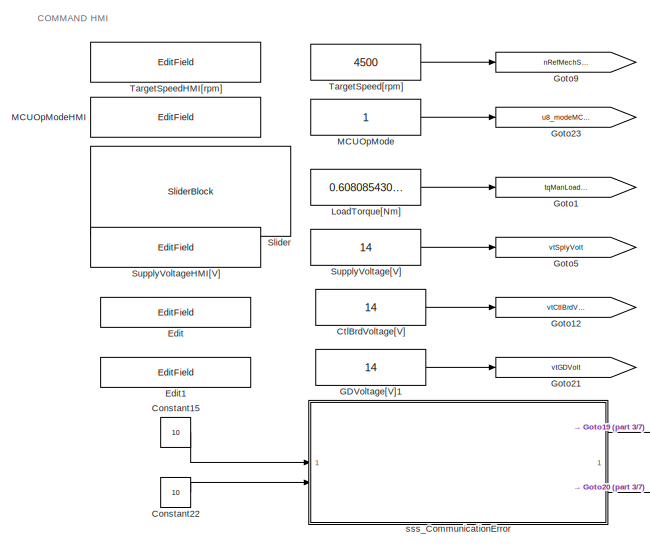
[diagram: root canvas - part 1/7, top center region]
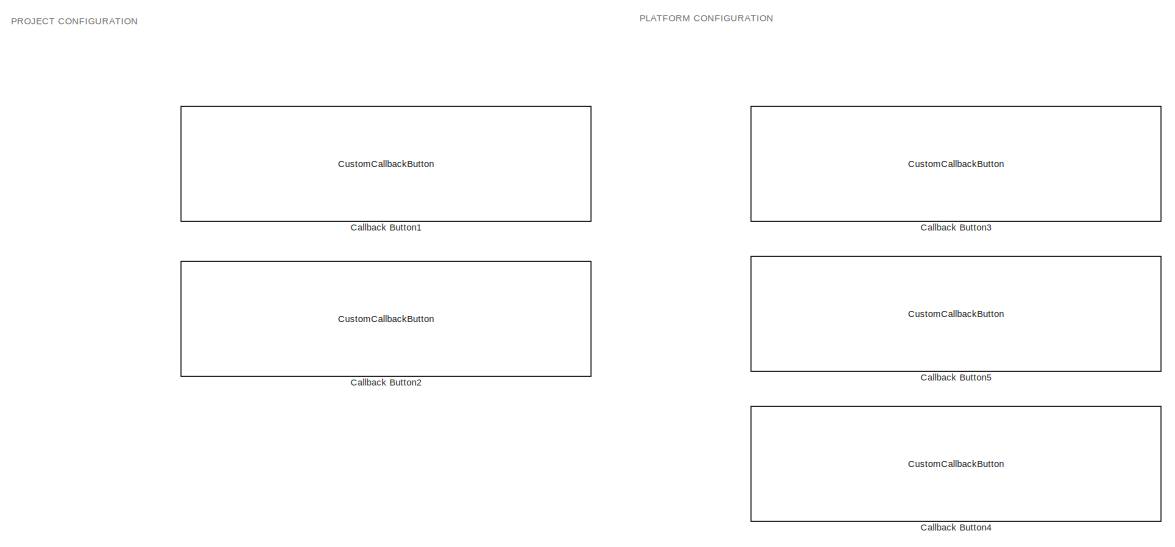
[diagram: root canvas - part 2/7, top left region]
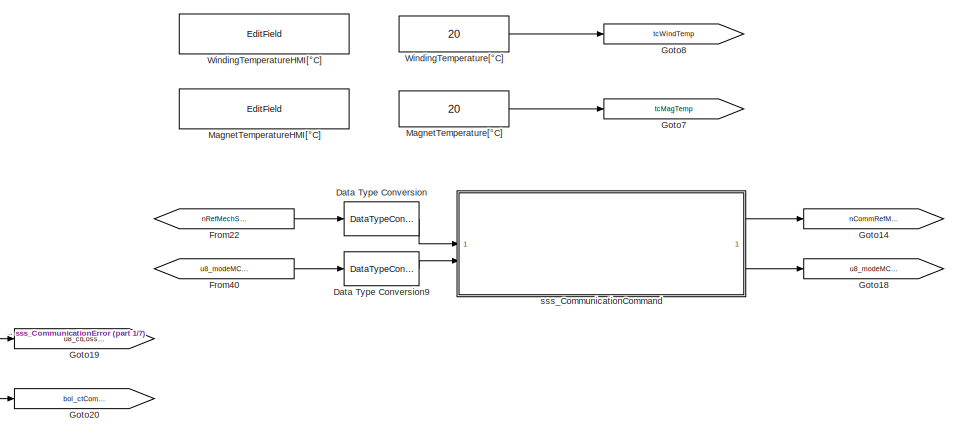
[diagram: root canvas - part 3/7, top right region]
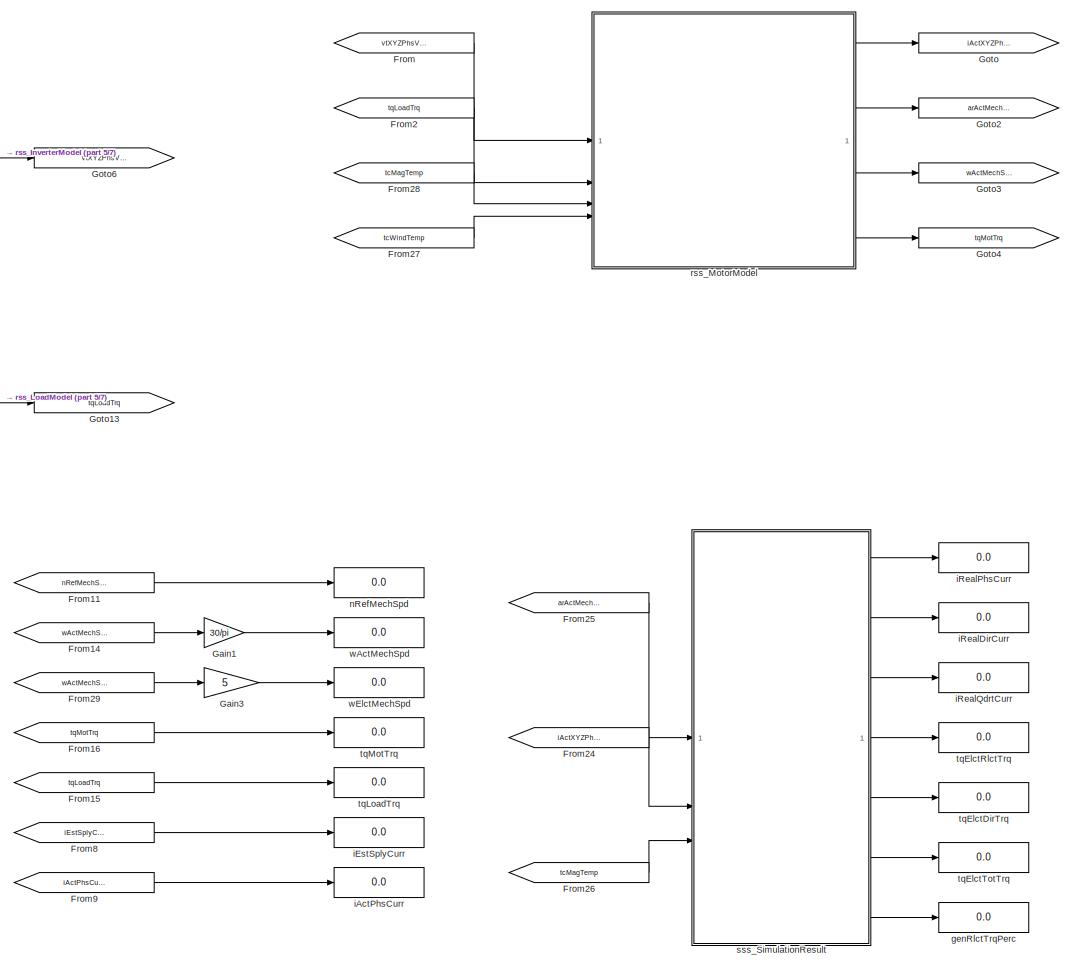
[diagram: root canvas - part 4/7, middle right region]
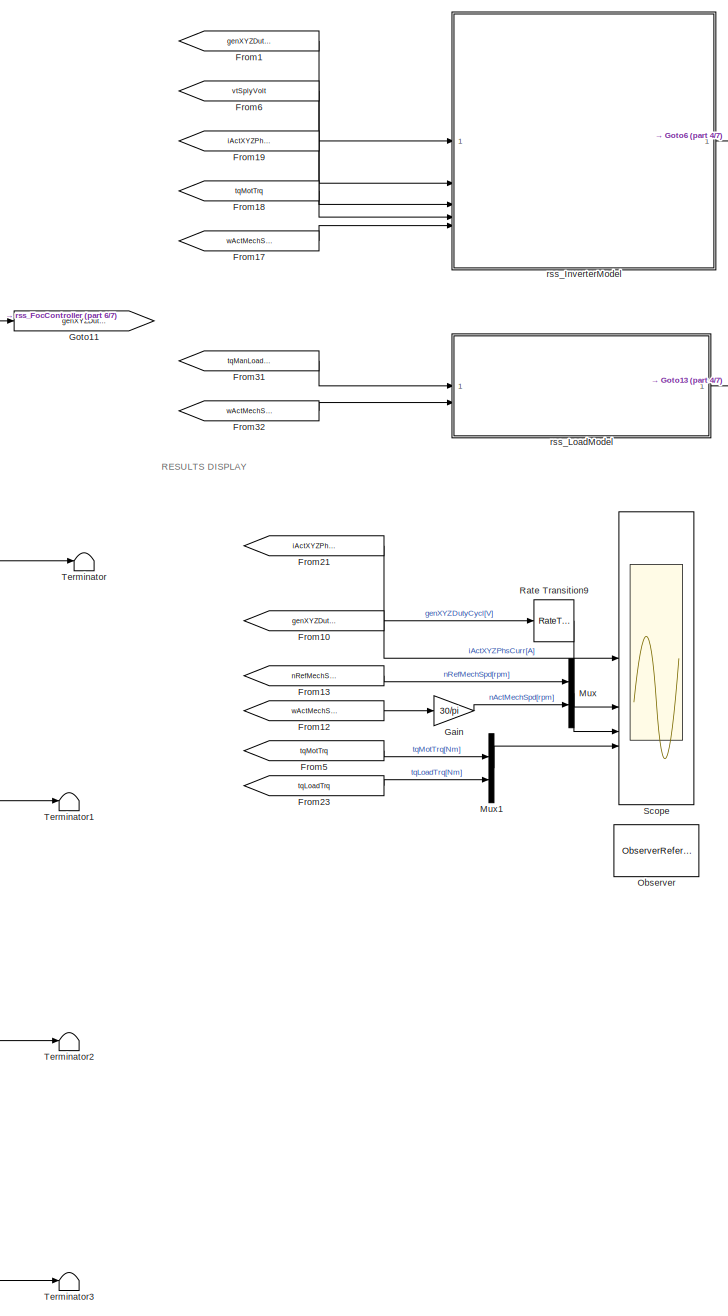
[diagram: root canvas - part 5/7, central region]
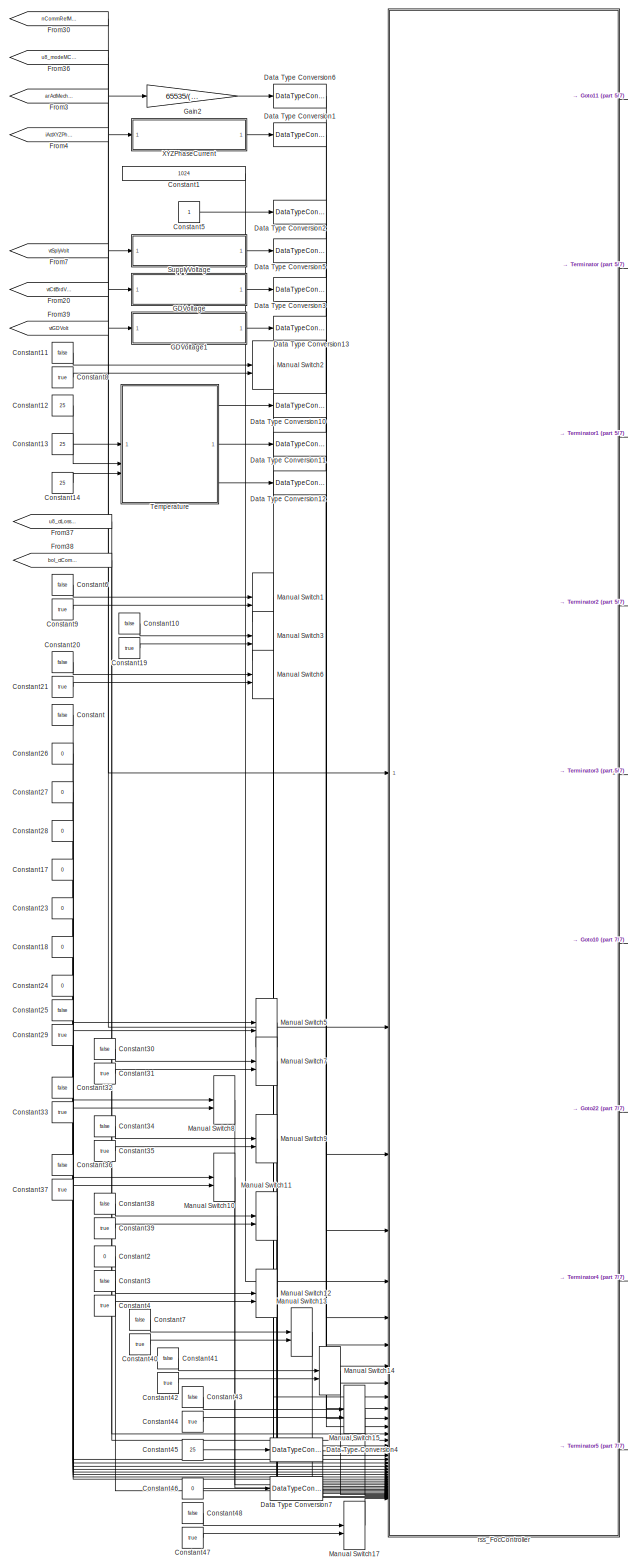
[diagram: root canvas - part 6/7, middle left region]
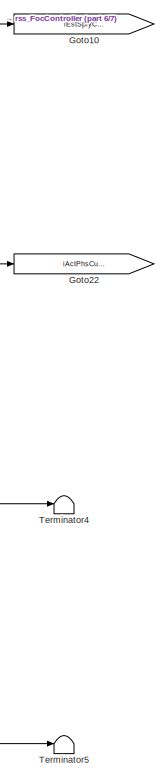
[diagram: root canvas - part 7/7, bottom center region]
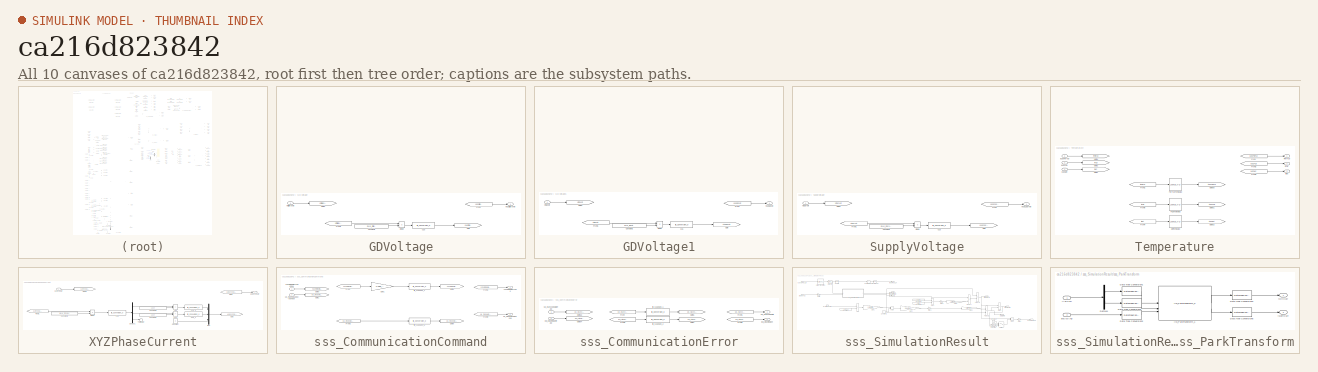
[diagram: thumbnail index - all 10 canvases of the model, root first then tree order]
MODEL slx_ca216d823842
KIND model
CONFIG AbsTol = auto
CONFIG EnableMultiTasking = off
CONFIG FixedStep = 6.25e-6
CONFIG MaxStep = auto
CONFIG MinStep = auto
CONFIG RelTol = 1e-3
CONFIG SampleTimeConstraint = Unconstrained
CONFIG SolverName = FixedStepAuto
CONFIG StartTime = 0.0
CONFIG StopTime = 10.0
BLOCK [CustomCallbackButton] Callback Button1
  Configuration = {"components":[{"name":"BackgroundImageComponent","settings":{"image":{"size":[0,0],"src":"default","srcOrientation":"horizontal"},"position":[0,0,1,1],"scaleMode":"0"}},{"name":"ButtonStateComponent","settings":{"buttonType":"momentary","clickFcn":"\nproj = simulinkproject;\nproj_dir = proj.RootFolder;\n% configure GEELY\n%%AST \nopen_system([proj_dir,'<path>']);...<+14609ch>
  CustomBackgroundColor = {"color":[0.6509803921568628,0.6509803921568628,0.6509803921568628],"show":true}
  Description = BYD 48V Project
BLOCK [CustomCallbackButton] Callback Button2
  Configuration = {"components":[{"name":"BackgroundImageComponent","settings":{"image":{"size":[0,0],"src":"default","srcOrientation":"horizontal"},"position":[0,0,1,1],"scaleMode":"0"}},{"name":"ButtonStateComponent","settings":{"buttonType":"momentary","clickFcn":"\nproj = simulinkproject;\nproj_dir = proj.RootFolder;\n% configure CRRC\n%%AST \nopen_system([proj_dir,'<path>']);\...<+14596ch>
  CustomBackgroundColor = {"color":[0.6509803921568628,0.6509803921568628,0.6509803921568628],"show":true}
  Description = BYD 48V Project
BLOCK [CustomCallbackButton] Callback Button3
  Configuration = {"components":[{"name":"BackgroundImageComponent","settings":{"image":{"size":[0,0],"src":"default","srcOrientation":"horizontal"},"position":[0,0,1,1],"scaleMode":"0"}},{"name":"ButtonStateComponent","settings":{"buttonType":"momentary","clickFcn":"\nsave_system;\n\nproj = simulinkproject;\nproj_dir = proj.RootFolder;\nconfiguration_dd = Simulink.data.dictionary.open([proj_dir,'\\data_dictionary\...<+24055ch>
BLOCK [CustomCallbackButton] Callback Button4
  Configuration = {"components":[{"name":"BackgroundImageComponent","settings":{"image":{"size":[0,0],"src":"default","srcOrientation":"horizontal"},"position":[0,0,1,1],"scaleMode":"0"}},{"name":"ButtonStateComponent","settings":{"buttonType":"momentary","clickFcn":"\nsave_system;\n\nproj = simulinkproject;\nproj_dir = proj.RootFolder;\nconfiguration_dd = Simulink.data.dictionary.open([proj_dir,'\\data_dictionary\...<+24028ch>
BLOCK [CustomCallbackButton] Callback Button5
  Configuration = {"components":[{"name":"BackgroundImageComponent","settings":{"image":{"size":[0,0],"src":"default","srcOrientation":"horizontal"},"position":[0,0,1,1],"scaleMode":"0"}},{"name":"ButtonStateComponent","settings":{"buttonType":"momentary","clickFcn":"\nsave_system;\n\nproj = simulinkproject;\nproj_dir = proj.RootFolder;\nconfiguration_dd = Simulink.data.dictionary.open([proj_dir,'\\data_dictionary\...<+24008ch>
BLOCK [Constant] Constant
  OutDataTypeStr = boolean
  Value = false
BLOCK [Constant] Constant1
  OutDataTypeStr = uint16
  Value = 1024
BLOCK [Constant] Constant10
  OutDataTypeStr = boolean
  Value = false
BLOCK [Constant] Constant11
  OutDataTypeStr = boolean
  Value = false
BLOCK [Constant] Constant12
  OutDataTypeStr = double
  Value = 25
BLOCK [Constant] Constant13
  OutDataTypeStr = double
  Value = 25
BLOCK [Constant] Constant14
  OutDataTypeStr = double
  Value = 25
BLOCK [Constant] Constant15
  OutDataTypeStr = uint8
  Value = 10
BLOCK [Constant] Constant17
  OutDataTypeStr = uint32
  Value = 0
BLOCK [Constant] Constant18
  OutDataTypeStr = Inherit: Inherit via back propagation
  Value = 0
BLOCK [Constant] Constant19
  OutDataTypeStr = boolean
  Value = true
BLOCK [Constant] Constant2
  OutDataTypeStr = uint8
  Value = 0
BLOCK [Constant] Constant20
  OutDataTypeStr = boolean
  Value = false
BLOCK [Constant] Constant21
  OutDataTypeStr = boolean
  Value = true
BLOCK [Constant] Constant22
  OutDataTypeStr = uint8
  Value = 10
BLOCK [Constant] Constant23
  OutDataTypeStr = dt_Temp_u8p0bn40
  Value = 0
BLOCK [Constant] Constant24
  OutDataTypeStr = Inherit: Inherit via back propagation
  Value = 0
BLOCK [Constant] Constant25
  OutDataTypeStr = boolean
  Value = false
BLOCK [Constant] Constant26
  OutDataTypeStr = Inherit: Inherit via back propagation
  Value = 0
BLOCK [Constant] Constant27
  OutDataTypeStr = Inherit: Inherit via back propagation
  Value = 0
BLOCK [Constant] Constant28
  OutDataTypeStr = uint32
  Value = 0
BLOCK [Constant] Constant29
  OutDataTypeStr = boolean
  Value = true
BLOCK [Constant] Constant3
  OutDataTypeStr = boolean
  Value = false
BLOCK [Constant] Constant30
  OutDataTypeStr = boolean
  Value = false
BLOCK [Constant] Constant31
  OutDataTypeStr = boolean
  Value = true
BLOCK [Constant] Constant32
  OutDataTypeStr = boolean
  Value = false
BLOCK [Constant] Constant33
  OutDataTypeStr = boolean
  Value = true
BLOCK [Constant] Constant34
  OutDataTypeStr = boolean
  Value = false
BLOCK [Constant] Constant35
  OutDataTypeStr = boolean
  Value = true
BLOCK [Constant] Constant36
  OutDataTypeStr = boolean
  Value = false
BLOCK [Constant] Constant37
  OutDataTypeStr = boolean
  Value = true
BLOCK [Constant] Constant38
  OutDataTypeStr = boolean
  Value = false
BLOCK [Constant] Constant39
  OutDataTypeStr = boolean
  Value = true
BLOCK [Constant] Constant4
  OutDataTypeStr = boolean
  Value = true
BLOCK [Constant] Constant40
  OutDataTypeStr = boolean
  Value = true
BLOCK [Constant] Constant41
  OutDataTypeStr = boolean
  Value = false
BLOCK [Constant] Constant42
  OutDataTypeStr = boolean
  Value = true
BLOCK [Constant] Constant43
  OutDataTypeStr = boolean
  Value = false
BLOCK [Constant] Constant44
  OutDataTypeStr = boolean
  Value = true
BLOCK [Constant] Constant45
  OutDataTypeStr = double
  Value = 25
BLOCK [Constant] Constant46
  OutDataTypeStr = double
  Value = 0
BLOCK [Constant] Constant47
  OutDataTypeStr = boolean
  Value = true
BLOCK [Constant] Constant48
  OutDataTypeStr = boolean
  Value = false
BLOCK [Constant] Constant5
  OutDataTypeStr = double
BLOCK [Constant] Constant6
  OutDataTypeStr = boolean
  Value = false
BLOCK [Constant] Constant7
  OutDataTypeStr = boolean
  Value = false
BLOCK [Constant] Constant8
  OutDataTypeStr = boolean
  Value = true
BLOCK [Constant] Constant9
  OutDataTypeStr = boolean
  Value = true
BLOCK [Constant] CtlBrdVoltage[V]
  Value = 14
BLOCK [DataTypeConversion] Data Type Conversion
  OutDataTypeStr = int16
  RndMeth = Floor
  SaturateOnIntegerOverflow = off
BLOCK [DataTypeConversion] Data Type Conversion1
  OutDataTypeStr = uint16
  RndMeth = Floor
  SaturateOnIntegerOverflow = off
BLOCK [DataTypeConversion] Data Type Conversion10
  OutDataTypeStr = uint16
  RndMeth = Floor
  SaturateOnIntegerOverflow = off
BLOCK [DataTypeConversion] Data Type Conversion11
  OutDataTypeStr = uint16
  RndMeth = Floor
  SaturateOnIntegerOverflow = off
BLOCK [DataTypeConversion] Data Type Conversion12
  OutDataTypeStr = uint16
  RndMeth = Floor
  SaturateOnIntegerOverflow = off
BLOCK [DataTypeConversion] Data Type Conversion13
  OutDataTypeStr = uint16
  RndMeth = Floor
  SaturateOnIntegerOverflow = off
BLOCK [DataTypeConversion] Data Type Conversion2
  OutDataTypeStr = uint8
  RndMeth = Floor
  SaturateOnIntegerOverflow = off
BLOCK [DataTypeConversion] Data Type Conversion3
  OutDataTypeStr = uint16
  RndMeth = Floor
  SaturateOnIntegerOverflow = off
BLOCK [DataTypeConversion] Data Type Conversion4
  OutDataTypeStr = dt_Temp_u8p0bn40
  RndMeth = Floor
  SaturateOnIntegerOverflow = off
BLOCK [DataTypeConversion] Data Type Conversion5
  OutDataTypeStr = uint16
  RndMeth = Floor
  SaturateOnIntegerOverflow = off
BLOCK [DataTypeConversion] Data Type Conversion6
  OutDataTypeStr = uint16
  RndMeth = Floor
  SaturateOnIntegerOverflow = off
BLOCK [DataTypeConversion] Data Type Conversion7
  OutDataTypeStr = dt_RadAng_u16r15b0
  RndMeth = Floor
  SaturateOnIntegerOverflow = off
BLOCK [DataTypeConversion] Data Type Conversion9
  OutDataTypeStr = uint8
  RndMeth = Floor
  SaturateOnIntegerOverflow = off
BLOCK [EditField] Edit
  Alignment = Center
  LabelPosition = Hide
  ShowInitialText = on
BLOCK [EditField] Edit1
  Alignment = Center
  LabelPosition = Hide
  ShowInitialText = on
BLOCK [From] From
  GotoTag = vtXYZPhsVolt
BLOCK [From] From1
  GotoTag = genXYZDutyCycl
BLOCK [From] From10
  GotoTag = genXYZDutyCycl
BLOCK [From] From11
  GotoTag = nRefMechSpd
BLOCK [From] From12
  GotoTag = wActMechSpd
BLOCK [From] From13
  GotoTag = nRefMechSpd
BLOCK [From] From14
  GotoTag = wActMechSpd
BLOCK [From] From15
  GotoTag = tqLoadTrq
BLOCK [From] From16
  GotoTag = tqMotTrq
BLOCK [From] From17
  GotoTag = wActMechSpd
BLOCK [From] From18
  GotoTag = tqMotTrq
BLOCK [From] From19
  GotoTag = iActXYZPhsCurr
BLOCK [From] From2
  GotoTag = tqLoadTrq
BLOCK [From] From20
  GotoTag = vtCtlBrdVolt
BLOCK [From] From21
  GotoTag = iActXYZPhsCurr
BLOCK [From] From22
  GotoTag = nRefMechSpd
BLOCK [From] From23
  GotoTag = tqLoadTrq
BLOCK [From] From24
  Commented = on
  GotoTag = iActXYZPhsCurr
BLOCK [From] From25
  Commented = on
  GotoTag = arActMechAng
BLOCK [From] From26
  Commented = on
  GotoTag = tcMagTemp
BLOCK [From] From27
  GotoTag = tcWindTemp
BLOCK [From] From28
  GotoTag = tcMagTemp
BLOCK [From] From29
  GotoTag = wActMechSpd
BLOCK [From] From3
  GotoTag = arActMechAng
BLOCK [From] From30
  GotoTag = nCommRefMechSpd
BLOCK [From] From31
  GotoTag = tqManLoadTrq
BLOCK [From] From32
  GotoTag = wActMechSpd
BLOCK [From] From36
  GotoTag = u8_modeMCUOpMode
BLOCK [From] From37
  GotoTag = u8_ctLossNoData
BLOCK [From] From38
  GotoTag = bol_ctComRolCnt
BLOCK [From] From39
  GotoTag = vtGDVolt
BLOCK [From] From4
  GotoTag = iActXYZPhsCurr
BLOCK [From] From40
  GotoTag = u8_modeMCUOpModeRaw
BLOCK [From] From5
  GotoTag = tqMotTrq
BLOCK [From] From6
  GotoTag = vtSplyVolt
BLOCK [From] From7
  GotoTag = vtSplyVolt
BLOCK [From] From8
  GotoTag = iEstSplyCurr
BLOCK [From] From9
  GotoTag = iActPhsCurr
BLOCK [SubSystem] GDVoltage
BLOCK [Constant] GDVoltage/Constant2
  Value = Gu16_rCtlBrdVltgADCRat_C
BLOCK [Product] GDVoltage/Divide
  Inputs = */
  OutDataTypeStr = Inherit: Inherit via back propagation
BLOCK [From] GDVoltage/From
  GotoTag = vtADCtlBrdVolt
BLOCK [From] GDVoltage/From1
  GotoTag = vtCtlBrdVolt
BLOCK [Goto] GDVoltage/Goto
  GotoTag = vtADCtlBrdVolt
BLOCK [Goto] GDVoltage/Goto5
  GotoTag = vtCtlBrdVolt
BLOCK [Reference] GDVoltage/u16  REF=lib_conversion/lib_Conversion_0  (lib defined in slx_7f5c0202220d)
  SourceBlock = lib_conversion/lib_Conversion_0
BLOCK [Outport] GDVoltage/vtADCtlBrdVolt
BLOCK [Inport] GDVoltage/vtCtlBrdVolt
BLOCK [SubSystem] GDVoltage1
BLOCK [Constant] GDVoltage1/Constant2
  Value = Gu16_rGDVltgADCRat_C
BLOCK [Product] GDVoltage1/Divide
  Inputs = */
  OutDataTypeStr = Inherit: Inherit via back propagation
BLOCK [From] GDVoltage1/From
  GotoTag = vtADGDVolt
BLOCK [From] GDVoltage1/From1
  GotoTag = vtGDVolt
BLOCK [Goto] GDVoltage1/Goto
  GotoTag = vtADGDVolt
BLOCK [Goto] GDVoltage1/Goto5
  GotoTag = vtGDVolt
BLOCK [Reference] GDVoltage1/u16  REF=lib_conversion/lib_Conversion_0  (lib defined in slx_7f5c0202220d)
  SourceBlock = lib_conversion/lib_Conversion_0
BLOCK [Outport] GDVoltage1/vtADGDVolt
BLOCK [Inport] GDVoltage1/vtGDVolt
BLOCK [Constant] GDVoltage[V]1
  Value = 14
BLOCK [Gain] Gain
  Gain = 30/pi
BLOCK [Gain] Gain1
  Gain = 30/pi
BLOCK [Gain] Gain2
  Gain = 65535/(2*pi)
  OutDataTypeStr = uint16
BLOCK [Gain] Gain3
  Gain = 5
BLOCK [Goto] Goto
  GotoTag = iActXYZPhsCurr
BLOCK [Goto] Goto1
  GotoTag = tqManLoadTrq
BLOCK [Goto] Goto10
  GotoTag = iEstSplyCurr
BLOCK [Goto] Goto11
  GotoTag = genXYZDutyCycl
BLOCK [Goto] Goto12
  GotoTag = vtCtlBrdVolt
BLOCK [Goto] Goto13
  GotoTag = tqLoadTrq
BLOCK [Goto] Goto14
  GotoTag = nCommRefMechSpd
BLOCK [Goto] Goto18
  GotoTag = u8_modeMCUOpMode
BLOCK [Goto] Goto19
  GotoTag = u8_ctLossNoData
BLOCK [Goto] Goto2
  GotoTag = arActMechAng
BLOCK [Goto] Goto20
  GotoTag = bol_ctComRolCnt
BLOCK [Goto] Goto21
  GotoTag = vtGDVolt
BLOCK [Goto] Goto22
  GotoTag = iActPhsCurr
BLOCK [Goto] Goto23
  GotoTag = u8_modeMCUOpModeRaw
BLOCK [Goto] Goto3
  GotoTag = wActMechSpd
BLOCK [Goto] Goto4
  GotoTag = tqMotTrq
BLOCK [Goto] Goto5
  GotoTag = vtSplyVolt
BLOCK [Goto] Goto6
  GotoTag = vtXYZPhsVolt
BLOCK [Goto] Goto7
  GotoTag = tcMagTemp
BLOCK [Goto] Goto8
  GotoTag = tcWindTemp
BLOCK [Goto] Goto9
  GotoTag = nRefMechSpd
BLOCK [Constant] LoadTorque[Nm]
  Value = 0.6080854309687262
BLOCK [Constant] MCUOpMode
BLOCK [EditField] MCUOpModeHMI
  Alignment = Center
  LabelPosition = Hide
  ShowInitialText = on
BLOCK [EditField] MagnetTemperatureHMI[°C]
  Alignment = Center
  LabelPosition = Hide
  ShowInitialText = on
BLOCK [Constant] MagnetTemperature[°C]
  Value = 20
BLOCK [ManualSwitch] Manual Switch1
BLOCK [ManualSwitch] Manual Switch10
BLOCK [ManualSwitch] Manual Switch11
BLOCK [ManualSwitch] Manual Switch12
BLOCK [ManualSwitch] Manual Switch13
BLOCK [ManualSwitch] Manual Switch14
BLOCK [ManualSwitch] Manual Switch15
BLOCK [ManualSwitch] Manual Switch17
BLOCK [ManualSwitch] Manual Switch2
BLOCK [ManualSwitch] Manual Switch3
BLOCK [ManualSwitch] Manual Switch5
BLOCK [ManualSwitch] Manual Switch6
  CurrentSetting = 0
BLOCK [ManualSwitch] Manual Switch7
  CurrentSetting = 0
BLOCK [ManualSwitch] Manual Switch8
BLOCK [ManualSwitch] Manual Switch9
BLOCK [Mux] Mux
  DisplayOption = bar
  Inputs = 2
BLOCK [Mux] Mux1
  DisplayOption = bar
  Inputs = 2
BLOCK [ObserverReference] Observer
  Commented = on
  ObserverModelName = obs_foc_controller
BLOCK [RateTransition] Rate Transition9
  Commented = through
  Deterministic = off
BLOCK [Scope] Scope
  Floating = off
  NumInputPorts = 4
  ScopeSpecificationString = Simulink.scopes.TimeScopeBlockCfg('CurrentConfiguration', extmgr.ConfigurationSet(extmgr.Configuration('Core','General UI',true),extmgr.Configuration('Core','Source UI',true),extmgr.Configuration('Sources','WiredSimulink',true,'DataLoggingVariableName','ScopeData1'),extmgr.Configuration('Visuals','Time Domain',true,'SerializedDisplays',{struct('MinYLimReal','-522.21356','MaxYLimReal','476.80222','...<+3724ch>
BLOCK [SliderBlock] Slider
  LabelPosition = Hide
  ScaleMax = 0.8
  TickInterval = 0.1
BLOCK [SubSystem] SupplyVoltage
BLOCK [Constant] SupplyVoltage/Constant2
  Value = Gu16_rSplyVltgADCRat_C
BLOCK [Product] SupplyVoltage/Divide
  Inputs = */
  OutDataTypeStr = Inherit: Inherit via back propagation
BLOCK [From] SupplyVoltage/From
  GotoTag = vtADCSplyVolt
BLOCK [From] SupplyVoltage/From1
  GotoTag = vtSplyVolt
BLOCK [Goto] SupplyVoltage/Goto
  GotoTag = vtADCSplyVolt
BLOCK [Goto] SupplyVoltage/Goto5
  GotoTag = vtSplyVolt
BLOCK [Reference] SupplyVoltage/u16  REF=lib_conversion/lib_Conversion_0  (lib defined in slx_7f5c0202220d)
  SourceBlock = lib_conversion/lib_Conversion_0
BLOCK [Outport] SupplyVoltage/vtADCSplyVolt
BLOCK [Inport] SupplyVoltage/vtSplyVolt
BLOCK [EditField] SupplyVoltageHMI[V]
  Alignment = Center
  LabelPosition = Hide
  ShowInitialText = on
BLOCK [Constant] SupplyVoltage[V]
  Value = 14
BLOCK [EditField] TargetSpeedHMI[rpm]
  Alignment = Center
  LabelPosition = Hide
  ShowInitialText = on
BLOCK [Constant] TargetSpeed[rpm]
  Value = 4500
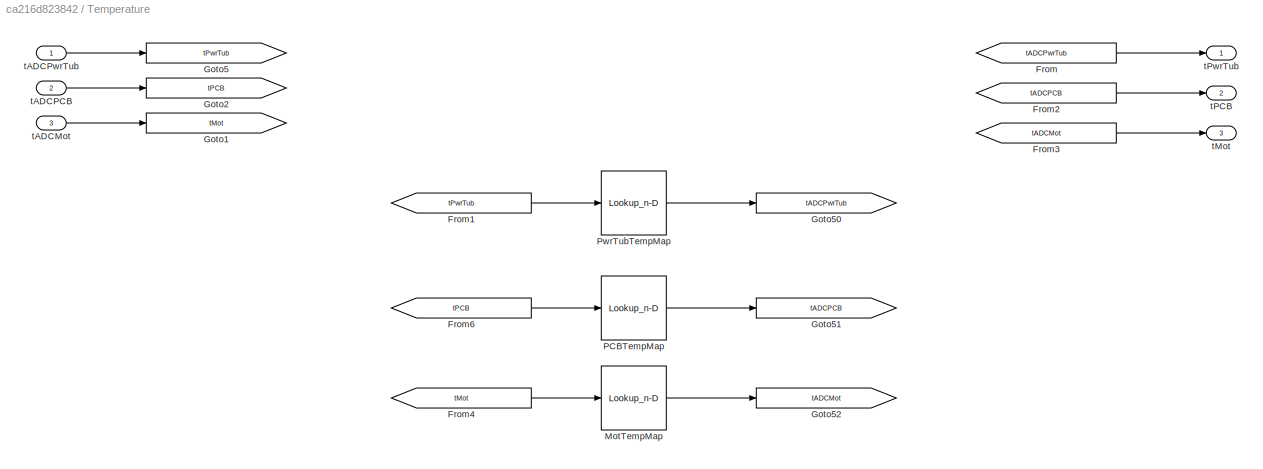
BLOCK [SubSystem] Temperature
BLOCK [From] Temperature/From
  GotoTag = tADCPwrTub
BLOCK [From] Temperature/From1
  GotoTag = tPwrTub
BLOCK [From] Temperature/From2
  GotoTag = tADCPCB
BLOCK [From] Temperature/From3
  GotoTag = tADCMot
BLOCK [From] Temperature/From4
  GotoTag = tMot
BLOCK [From] Temperature/From6
  GotoTag = tPCB
BLOCK [Goto] Temperature/Goto1
  GotoTag = tMot
BLOCK [Goto] Temperature/Goto2
  GotoTag = tPCB
BLOCK [Goto] Temperature/Goto5
  GotoTag = tPwrTub
BLOCK [Goto] Temperature/Goto50
  GotoTag = tADCPwrTub
BLOCK [Goto] Temperature/Goto51
  GotoTag = tADCPCB
BLOCK [Goto] Temperature/Goto52
  GotoTag = tADCMot
BLOCK [Lookup_n-D] Temperature/MotTempMap
  BreakpointsForDimension1 = Gu8_tMotoTemp_CUR
  ExtrapMethod = Clip
  InputPortMap = u0
  InternalRulePriority = Speed
  NumberOfTableDimensions = 1
  OutDataTypeStr = Inherit: Inherit from 'Table data'
  RndMeth = Simplest
  Table = Gu16_tMotoTemp_CUR_ADMotoTempADC_X
BLOCK [Lookup_n-D] Temperature/PCBTempMap
  BreakpointsForDimension1 = Gu8_tPCBTemp_CUR
  ExtrapMethod = Clip
  InputPortMap = u0
  InternalRulePriority = Speed
  NumberOfTableDimensions = 1
  OutDataTypeStr = Inherit: Inherit from 'Table data'
  RndMeth = Simplest
  Table = Gu16_tPCBTemp_CUR_ADPCBTempADC_X
BLOCK [Lookup_n-D] Temperature/PwrTubTempMap
  BreakpointsForDimension1 = Gu8_tPwrTubTemp_CUR
  ExtrapMethod = Clip
  InputPortMap = u0
  InternalRulePriority = Speed
  NumberOfTableDimensions = 1
  OutDataTypeStr = Inherit: Inherit from 'Table data'
  RndMeth = Simplest
  Table = Gu16_tPwrTubTemp_CUR_ADPwrTubTempADC_X
BLOCK [Inport] Temperature/tADCMot
  Port = 3
BLOCK [Inport] Temperature/tADCPCB
  Port = 2
BLOCK [Inport] Temperature/tADCPwrTub
BLOCK [Outport] Temperature/tMot
  Port = 3
BLOCK [Outport] Temperature/tPCB
  Port = 2
BLOCK [Outport] Temperature/tPwrTub
BLOCK [Terminator] Terminator
BLOCK [Terminator] Terminator1
BLOCK [Terminator] Terminator2
BLOCK [Terminator] Terminator3
BLOCK [Terminator] Terminator4
BLOCK [Terminator] Terminator5
BLOCK [EditField] WindingTemperatureHMI[°C]
  Alignment = Center
  LabelPosition = Hide
  ShowInitialText = on
BLOCK [Constant] WindingTemperature[°C]
  Value = 20
BLOCK [SubSystem] XYZPhaseCurrent
BLOCK [Sum] XYZPhaseCurrent/Add
  IconShape = rectangular
  OutDataTypeStr = Inherit: Inherit via back propagation
BLOCK [Sum] XYZPhaseCurrent/Add1
  IconShape = rectangular
  OutDataTypeStr = Inherit: Inherit via back propagation
BLOCK [Constant] XYZPhaseCurrent/Constant
  OutDataTypeStr = uint16
  Value = 0
BLOCK [Constant] XYZPhaseCurrent/Constant1
  OutDataTypeStr = int16
  Value = 1024
BLOCK [Constant] XYZPhaseCurrent/Constant2
  Value = Gu16_rPhCurrADCRat_C
BLOCK [Constant] XYZPhaseCurrent/Constant3
  OutDataTypeStr = int16
  Value = 1024
BLOCK [Demux] XYZPhaseCurrent/Demux1
  Outputs = 3
BLOCK [Product] XYZPhaseCurrent/Divide
  Inputs = */
  OutDataTypeStr = Inherit: Inherit via back propagation
BLOCK [From] XYZPhaseCurrent/From
  GotoTag = iADCXYZCurr
BLOCK [From] XYZPhaseCurrent/From1
  GotoTag = iActXYZCurr
BLOCK [Goto] XYZPhaseCurrent/Goto
  GotoTag = iADCXYZCurr
BLOCK [Goto] XYZPhaseCurrent/Goto5
  GotoTag = iActXYZCurr
BLOCK [Mux] XYZPhaseCurrent/Mux
  DisplayOption = bar
  Inputs = 3
BLOCK [Terminator] XYZPhaseCurrent/Terminator
BLOCK [Outport] XYZPhaseCurrent/iADCXYZCurr
BLOCK [Inport] XYZPhaseCurrent/iActXYZCurr
BLOCK [Reference] XYZPhaseCurrent/s16  REF=lib_conversion/lib_Conversion_0  (lib defined in slx_7f5c0202220d)
  SourceBlock = lib_conversion/lib_Conversion_0
BLOCK [Reference] XYZPhaseCurrent/u16_0  REF=lib_conversion/lib_Conversion_0  (lib defined in slx_7f5c0202220d)
  SourceBlock = lib_conversion/lib_Conversion_0
BLOCK [Reference] XYZPhaseCurrent/u16_1  REF=lib_conversion/lib_Conversion_0  (lib defined in slx_7f5c0202220d)
  SourceBlock = lib_conversion/lib_Conversion_0
BLOCK [Display] genRlctTrqPerc
  Commented = on
  Decimation = 1
BLOCK [Display] iActPhsCurr
  Decimation = 1
BLOCK [Display] iEstSplyCurr
  Decimation = 1
BLOCK [Display] iRealDirCurr
  Commented = on
  Decimation = 1
BLOCK [Display] iRealPhsCurr
  Commented = on
  Decimation = 1
BLOCK [Display] iRealQdrtCurr
  Commented = on
  Decimation = 1
BLOCK [Display] nRefMechSpd
  Decimation = 1
BLOCK [SubSystem] rss_FocController
  ReferencedSubsystem = rss_foc_controller_NewPlatform
  TreatAsAtomicUnit = on
BLOCK [SubSystem] rss_InverterModel
  ReferencedSubsystem = rss_inverter_model
  TreatAsAtomicUnit = on
BLOCK [SubSystem] rss_LoadModel
  ReferencedSubsystem = rss_load_model
BLOCK [SubSystem] rss_MotorModel
  InitFcn = Simulink.suppressDiagnostic([gcb,'/vss_MotorModel/vss_ComplexModelVersion1/Data Type Conversion2'],...\n 'SimulinkFixedPoint:util:Overflowoccurred');
  ReferencedSubsystem = rss_motor_model
BLOCK [SubSystem] sss_CommunicationCommand
BLOCK [From] sss_CommunicationCommand/From
  GotoTag = nCommRefMechSpdRaw
BLOCK [From] sss_CommunicationCommand/From1
  GotoTag = nCommRefMechSpd
BLOCK [From] sss_CommunicationCommand/From2
  GotoTag = u8_modeMCUOpModeRaw
BLOCK [From] sss_CommunicationCommand/From9
  GotoTag = u8_modeMCUOpMode
BLOCK [Gain] sss_CommunicationCommand/Gain1
  Gain = 1/Cdbl_nMechSpdPeakVal
  OutDataTypeStr = Inherit: Inherit via back propagation
BLOCK [Goto] sss_CommunicationCommand/Goto1
  GotoTag = u8_modeMCUOpModeRaw
BLOCK [Goto] sss_CommunicationCommand/Goto5
  GotoTag = nCommRefMechSpd
BLOCK [Goto] sss_CommunicationCommand/Goto6
  GotoTag = u8_modeMCUOpMode
BLOCK [Goto] sss_CommunicationCommand/Goto9
  GotoTag = nCommRefMechSpdRaw
BLOCK [Reference] sss_CommunicationCommand/lib_s16p5b0_1  REF=lib_conversion/lib_Conversion_0  (lib defined in slx_7f5c0202220d)
  SourceBlock = lib_conversion/lib_Conversion_0
BLOCK [Reference] sss_CommunicationCommand/lib_s16p5b0_5  REF=lib_conversion/lib_Conversion_0  (lib defined in slx_7f5c0202220d)
  SourceBlock = lib_conversion/lib_Conversion_0
BLOCK [Outport] sss_CommunicationCommand/nCommRefMechSpd
  OutDataTypeStr = dt_Standardize_s16p15b0
BLOCK [Inport] sss_CommunicationCommand/nCommRefMechSpdRaw
  OutDataTypeStr = int16
BLOCK [Outport] sss_CommunicationCommand/u8_modeMCUOpMode
  OutDataTypeStr = uint8
  Port = 2
BLOCK [Inport] sss_CommunicationCommand/u8_modeMCUOpModeRaw
  OutDataTypeStr = uint8
  Port = 2
BLOCK [SubSystem] sss_CommunicationError
BLOCK [From] sss_CommunicationError/From
  GotoTag = u8_ctLossNoDataRaw
BLOCK [From] sss_CommunicationError/From1
  GotoTag = u8_ctLossNoData
BLOCK [From] sss_CommunicationError/From2
  GotoTag = bol_ctComRolCntRaw
BLOCK [From] sss_CommunicationError/From6
  GotoTag = bol_ctComRolCnt
BLOCK [Goto] sss_CommunicationError/Goto2
  GotoTag = bol_ctComRolCnt
BLOCK [Goto] sss_CommunicationError/Goto5
  GotoTag = u8_ctLossNoData
BLOCK [Goto] sss_CommunicationError/Goto53
  GotoTag = u8_ctLossNoDataRaw
BLOCK [Goto] sss_CommunicationError/Goto54
  GotoTag = bol_ctComRolCntRaw
BLOCK [Outport] sss_CommunicationError/bol_ctComRolCnt
  OutDataTypeStr = uint8
  Port = 2
BLOCK [Inport] sss_CommunicationError/bol_ctComRolCntRaw
  OutDataTypeStr = uint8
  Port = 2
BLOCK [Reference] sss_CommunicationError/lib_s16p5b0_1  REF=lib_conversion/lib_Conversion_0  (lib defined in slx_7f5c0202220d)
  SourceBlock = lib_conversion/lib_Conversion_0
BLOCK [Reference] sss_CommunicationError/lib_s16p5b0_2  REF=lib_conversion/lib_Conversion_0  (lib defined in slx_7f5c0202220d)
  SourceBlock = lib_conversion/lib_Conversion_0
BLOCK [Outport] sss_CommunicationError/u8_ctLossNoData
  OutDataTypeStr = uint8
BLOCK [Inport] sss_CommunicationError/u8_ctLossNoDataRaw
  OutDataTypeStr = uint8
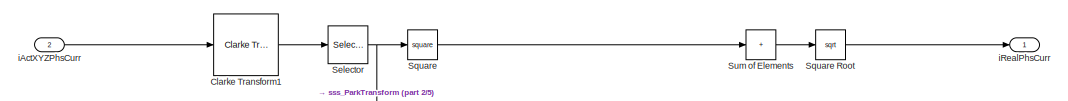
[diagram: sss_SimulationResult - part 1/5, top left region]
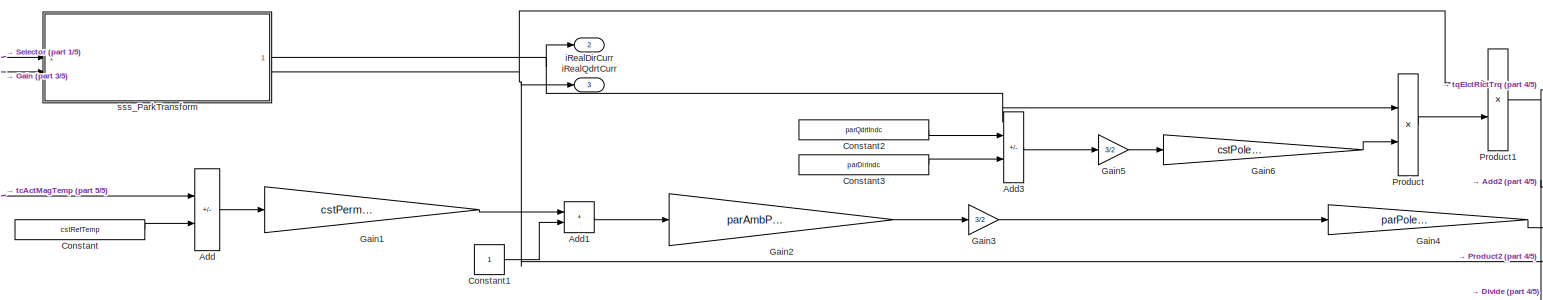
[diagram: sss_SimulationResult - part 2/5, central region]
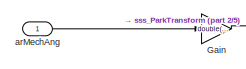
[diagram: sss_SimulationResult - part 3/5, middle left region]
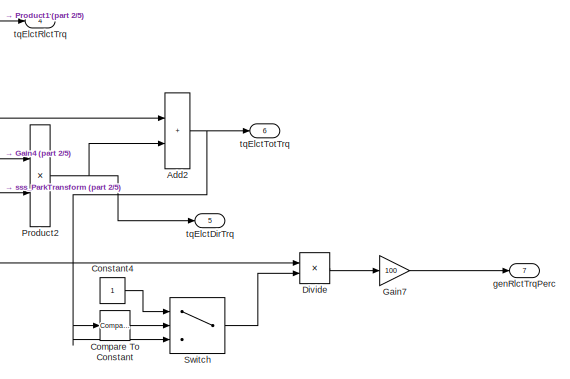
[diagram: sss_SimulationResult - part 4/5, middle right region]
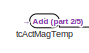
[diagram: sss_SimulationResult - part 5/5, middle left region]
BLOCK [SubSystem] sss_SimulationResult
  ClipboardFcn = Simulink.suppressDiagnostic([gcb,'/sss_ParkTransform/Data Type Conversion2'],...\n 'SimulinkFixedPoint:util:Overflowoccurred');
  Commented = on
BLOCK [Sum] sss_SimulationResult/Add
  IconShape = rectangular
  Inputs = +-
BLOCK [Sum] sss_SimulationResult/Add1
  IconShape = rectangular
BLOCK [Sum] sss_SimulationResult/Add2
  IconShape = rectangular
BLOCK [Sum] sss_SimulationResult/Add3
  IconShape = rectangular
  Inputs = -+
BLOCK [Reference] sss_SimulationResult/Clarke Transform1  REF=eeTransforms/Clarke Transform
  SourceBlock = eeTransforms/Clarke Transform
  SourceType = Clarke Transform
BLOCK [Reference] sss_SimulationResult/Compare To Constant  REF=simulink/Logic and Bit
Operations/Compare
To Constant
  SourceBlock = simulink/Logic and Bit\nOperations/Compare\nTo Constant
  SourceType = Compare To Constant
BLOCK [Constant] sss_SimulationResult/Constant
  OutDataTypeStr = double
  Value = cstRefTemp
BLOCK [Constant] sss_SimulationResult/Constant1
BLOCK [Constant] sss_SimulationResult/Constant2
  OutDataTypeStr = double
  Value = parQdrtIndc
BLOCK [Constant] sss_SimulationResult/Constant3
  OutDataTypeStr = double
  Value = parDirIndc
BLOCK [Constant] sss_SimulationResult/Constant4
BLOCK [Product] sss_SimulationResult/Divide
  Inputs = */
BLOCK [Gain] sss_SimulationResult/Gain
  Gain = double(parPolePairNum)
BLOCK [Gain] sss_SimulationResult/Gain1
  Gain = cstPermMagTempCoef
  OutDataTypeStr = double
BLOCK [Gain] sss_SimulationResult/Gain2
  Gain = parAmbPermMagFlux
  OutDataTypeStr = double
BLOCK [Gain] sss_SimulationResult/Gain3
  Gain = 3/2
BLOCK [Gain] sss_SimulationResult/Gain4
  Gain = parPolePairNum
BLOCK [Gain] sss_SimulationResult/Gain5
  Gain = 3/2
BLOCK [Gain] sss_SimulationResult/Gain6
  Gain = cstPolePairNum
BLOCK [Gain] sss_SimulationResult/Gain7
  Gain = 100
BLOCK [Product] sss_SimulationResult/Product
BLOCK [Product] sss_SimulationResult/Product1
BLOCK [Product] sss_SimulationResult/Product2
BLOCK [Selector] sss_SimulationResult/Selector
  IndexOptions = Index vector (dialog)
  Indices = [1 2]
  InputPortWidth = 3
  OutputSizes = 1
BLOCK [Math] sss_SimulationResult/Square
  Operator = square
BLOCK [Sqrt] sss_SimulationResult/Square Root
BLOCK [Sum] sss_SimulationResult/Sum of Elements
  IconShape = rectangular
  Inputs = +
BLOCK [Switch] sss_SimulationResult/Switch
  Criteria = u2 ~= 0
  InputSameDT = off
  SaturateOnIntegerOverflow = off
BLOCK [Inport] sss_SimulationResult/arMechAng
BLOCK [Outport] sss_SimulationResult/genRlctTrqPerc
  Port = 7
BLOCK [Inport] sss_SimulationResult/iActXYZPhsCurr
  Port = 2
BLOCK [Outport] sss_SimulationResult/iRealDirCurr
  Port = 2
BLOCK [Outport] sss_SimulationResult/iRealPhsCurr
BLOCK [Outport] sss_SimulationResult/iRealQdrtCurr
  Port = 3
BLOCK [SubSystem] sss_SimulationResult/sss_ParkTransform
BLOCK [DataTypeConversion] sss_SimulationResult/sss_ParkTransform/Data Type Conversion1
  OutDataTypeStr = fixdt(1,16,2^-7,0)
  RndMeth = Floor
  SaturateOnIntegerOverflow = off
BLOCK [DataTypeConversion] sss_SimulationResult/sss_ParkTransform/Data Type Conversion2
  OutDataTypeStr = fixdt(0,16,pi*2^-15,0)
  RndMeth = Floor
  SaturateOnIntegerOverflow = off
BLOCK [DataTypeConversion] sss_SimulationResult/sss_ParkTransform/Data Type Conversion3
  OutDataTypeStr = fixdt(1,16,2^-7,0)
  RndMeth = Floor
  SaturateOnIntegerOverflow = off
BLOCK [DataTypeConversion] sss_SimulationResult/sss_ParkTransform/Data Type Conversion4
  OutDataTypeStr = double
  RndMeth = Floor
  SaturateOnIntegerOverflow = off
BLOCK [DataTypeConversion] sss_SimulationResult/sss_ParkTransform/Data Type Conversion5
  OutDataTypeStr = double
  RndMeth = Floor
  SaturateOnIntegerOverflow = off
BLOCK [Demux] sss_SimulationResult/sss_ParkTransform/Demux1
  Outputs = 2
BLOCK [Inport] sss_SimulationResult/sss_ParkTransform/arElctAng
  Port = 2
BLOCK [Inport] sss_SimulationResult/sss_ParkTransform/iABCurr
BLOCK [Outport] sss_SimulationResult/sss_ParkTransform/iDirCurr
BLOCK [Outport] sss_SimulationResult/sss_ParkTransform/iQdrtCurr
  Port = 2
BLOCK [Reference] sss_SimulationResult/sss_ParkTransform/lib_ParkTransform_1  REF=lib_park_transform/lib_ParkTransform_0  (lib defined in slx_b77e42a9bee3)
  SourceBlock = lib_park_transform/lib_ParkTransform_0
BLOCK [Inport] sss_SimulationResult/tcActMagTemp
  Port = 3
BLOCK [Outport] sss_SimulationResult/tqElctDirTrq
  Port = 5
BLOCK [Outport] sss_SimulationResult/tqElctRlctTrq
  Port = 4
BLOCK [Outport] sss_SimulationResult/tqElctTotTrq
  Port = 6
BLOCK [Display] tqElctDirTrq
  Commented = on
  Decimation = 1
BLOCK [Display] tqElctRlctTrq
  Commented = on
  Decimation = 1
BLOCK [Display] tqElctTotTrq
  Commented = on
  Decimation = 1
BLOCK [Display] tqLoadTrq
  Decimation = 1
BLOCK [Display] tqMotTrq
  Decimation = 1
BLOCK [Display] wActMechSpd
  Decimation = 1
BLOCK [Display] wElctMechSpd
  Decimation = 1
ANNOTATION (root): COMMAND HMI
ANNOTATION (root): PLATFORM CONFIGURATION
ANNOTATION (root): PROJECT CONFIGURATION
ANNOTATION (root): RESULTS DISPLAY
LINE Constant10:1 -> Manual Switch3:1
LINE Constant11:1 -> Manual Switch2:1
LINE Constant12:1 -> Temperature:1
LINE Constant13:1 -> Temperature:2
LINE Constant14:1 -> Temperature:3
LINE Constant15:1 -> sss_CommunicationError:1
LINE Constant17:1 -> rss_FocController:23
LINE Constant18:1 -> rss_FocController:25
LINE Constant19:1 -> Manual Switch3:2
LINE Constant1:1 -> rss_FocController:5
LINE Constant20:1 -> Manual Switch6:1
LINE Constant21:1 -> Manual Switch6:2
LINE Constant22:1 -> sss_CommunicationError:2
LINE Constant23:1 -> rss_FocController:24
LINE Constant24:1 -> rss_FocController:26
LINE Constant25:1 -> Manual Switch5:1
LINE Constant26:1 -> rss_FocController:20
LINE Constant27:1 -> rss_FocController:21
LINE Constant28:1 -> rss_FocController:22
LINE Constant29:1 -> Manual Switch5:2
LINE Constant2:1 -> rss_FocController:33
LINE Constant30:1 -> Manual Switch7:1
LINE Constant31:1 -> Manual Switch7:2
LINE Constant32:1 -> Manual Switch8:1
LINE Constant33:1 -> Manual Switch8:2
LINE Constant34:1 -> Manual Switch9:1
LINE Constant35:1 -> Manual Switch9:2
LINE Constant36:1 -> Manual Switch10:1
LINE Constant37:1 -> Manual Switch10:2
LINE Constant38:1 -> Manual Switch11:1
LINE Constant39:1 -> Manual Switch11:2
LINE Constant3:1 -> Manual Switch12:1
LINE Constant40:1 -> Manual Switch13:2
LINE Constant41:1 -> Manual Switch14:1
LINE Constant42:1 -> Manual Switch14:2
LINE Constant43:1 -> Manual Switch15:1
LINE Constant44:1 -> Manual Switch15:2
LINE Constant45:1 -> Data Type Conversion4:1
LINE Constant46:1 -> Data Type Conversion7:1
LINE Constant47:1 -> Manual Switch17:2
LINE Constant48:1 -> Manual Switch17:1
LINE Constant4:1 -> Manual Switch12:2
LINE Constant5:1 -> Data Type Conversion2:1
LINE Constant6:1 -> Manual Switch1:1
LINE Constant7:1 -> Manual Switch13:1
LINE Constant8:1 -> Manual Switch2:2
LINE Constant9:1 -> Manual Switch1:2
LINE Constant:1 -> rss_FocController:19
LINE CtlBrdVoltage[V]:1 -> Goto12:1
LINE Data Type Conversion10:1 -> rss_FocController:11
LINE Data Type Conversion11:1 -> rss_FocController:12
LINE Data Type Conversion12:1 -> rss_FocController:13
LINE Data Type Conversion13:1 -> rss_FocController:9
LINE Data Type Conversion1:1 -> rss_FocController:4
LINE Data Type Conversion2:1 -> rss_FocController:6
LINE Data Type Conversion3:1 -> rss_FocController:8
LINE Data Type Conversion4:1 -> rss_FocController:38
LINE Data Type Conversion5:1 -> rss_FocController:7
LINE Data Type Conversion6:1 -> rss_FocController:3
LINE Data Type Conversion7:1 -> rss_FocController:39
LINE Data Type Conversion9:1 -> sss_CommunicationCommand:2
LINE Data Type Conversion:1 -> sss_CommunicationCommand:1
LINE From10:1 -> Rate Transition9:1
LINE From11:1 -> nRefMechSpd:1
LINE From12:1 -> Gain:1
LINE From13:1 -> Mux:1
LINE From14:1 -> Gain1:1
LINE From15:1 -> tqLoadTrq:1
LINE From16:1 -> tqMotTrq:1
LINE From17:1 -> rss_InverterModel:5
LINE From18:1 -> rss_InverterModel:4
LINE From19:1 -> rss_InverterModel:3
LINE From1:1 -> rss_InverterModel:1
LINE From20:1 -> GDVoltage:1
LINE From21:1 -> Scope:1
LINE From22:1 -> Data Type Conversion:1
LINE From23:1 -> Mux1:2
LINE From24:1 -> sss_SimulationResult:2
LINE From25:1 -> sss_SimulationResult:1
LINE From26:1 -> sss_SimulationResult:3
LINE From27:1 -> rss_MotorModel:4
LINE From28:1 -> rss_MotorModel:3
LINE From29:1 -> Gain3:1
LINE From2:1 -> rss_MotorModel:2
LINE From30:1 -> rss_FocController:1
LINE From31:1 -> rss_LoadModel:1
LINE From32:1 -> rss_LoadModel:2
LINE From36:1 -> rss_FocController:2
LINE From37:1 -> rss_FocController:14
LINE From38:1 -> rss_FocController:15
LINE From39:1 -> GDVoltage1:1
LINE From3:1 -> Gain2:1
LINE From40:1 -> Data Type Conversion9:1
LINE From4:1 -> XYZPhaseCurrent:1
LINE From5:1 -> Mux1:1
LINE From6:1 -> rss_InverterModel:2
LINE From7:1 -> SupplyVoltage:1
LINE From8:1 -> iEstSplyCurr:1
LINE From9:1 -> iActPhsCurr:1
LINE From:1 -> rss_MotorModel:1
LINE GDVoltage/Constant2:1 -> GDVoltage/Divide:2
LINE GDVoltage/Divide:1 -> GDVoltage/u16:1
LINE GDVoltage/From1:1 -> GDVoltage/Divide:1
LINE GDVoltage/From:1 -> GDVoltage/vtADCtlBrdVolt:1
LINE GDVoltage/u16:1 -> GDVoltage/Goto:1
LINE GDVoltage/vtCtlBrdVolt:1 -> GDVoltage/Goto5:1
LINE GDVoltage1/Constant2:1 -> GDVoltage1/Divide:2
LINE GDVoltage1/Divide:1 -> GDVoltage1/u16:1
LINE GDVoltage1/From1:1 -> GDVoltage1/Divide:1
LINE GDVoltage1/From:1 -> GDVoltage1/vtADGDVolt:1
LINE GDVoltage1/u16:1 -> GDVoltage1/Goto:1
LINE GDVoltage1/vtGDVolt:1 -> GDVoltage1/Goto5:1
LINE GDVoltage1:1 -> Data Type Conversion13:1
LINE GDVoltage:1 -> Data Type Conversion3:1
LINE GDVoltage[V]1:1 -> Goto21:1
LINE Gain1:1 -> wActMechSpd:1
LINE Gain2:1 -> Data Type Conversion6:1
LINE Gain3:1 -> wElctMechSpd:1
LINE Gain:1 -> Mux:2
LINE LoadTorque[Nm]:1 -> Goto1:1
LINE MCUOpMode:1 -> Goto23:1
LINE MagnetTemperature[°C]:1 -> Goto7:1
LINE Manual Switch10:1 -> rss_FocController:31
LINE Manual Switch11:1 -> rss_FocController:32
LINE Manual Switch12:1 -> rss_FocController:34
LINE Manual Switch13:1 -> rss_FocController:35
LINE Manual Switch14:1 -> rss_FocController:36
LINE Manual Switch15:1 -> rss_FocController:37
LINE Manual Switch17:1 -> rss_FocController:40
LINE Manual Switch1:1 -> rss_FocController:16
LINE Manual Switch2:1 -> rss_FocController:10
LINE Manual Switch3:1 -> rss_FocController:17
LINE Manual Switch5:1 -> rss_FocController:27
LINE Manual Switch6:1 -> rss_FocController:18
LINE Manual Switch7:1 -> rss_FocController:28
LINE Manual Switch8:1 -> rss_FocController:29
LINE Manual Switch9:1 -> rss_FocController:30
LINE Mux1:1 -> Scope:4
LINE Mux:1 -> Scope:3
LINE Rate Transition9:1 -> Scope:2
LINE SupplyVoltage/Constant2:1 -> SupplyVoltage/Divide:2
LINE SupplyVoltage/Divide:1 -> SupplyVoltage/u16:1
LINE SupplyVoltage/From1:1 -> SupplyVoltage/Divide:1
LINE SupplyVoltage/From:1 -> SupplyVoltage/vtADCSplyVolt:1
LINE SupplyVoltage/u16:1 -> SupplyVoltage/Goto:1
LINE SupplyVoltage/vtSplyVolt:1 -> SupplyVoltage/Goto5:1
LINE SupplyVoltage:1 -> Data Type Conversion5:1
LINE SupplyVoltage[V]:1 -> Goto5:1
LINE TargetSpeed[rpm]:1 -> Goto9:1
LINE Temperature/From1:1 -> Temperature/PwrTubTempMap:1
LINE Temperature/From2:1 -> Temperature/tPCB:1
LINE Temperature/From3:1 -> Temperature/tMot:1
LINE Temperature/From4:1 -> Temperature/MotTempMap:1
LINE Temperature/From6:1 -> Temperature/PCBTempMap:1
LINE Temperature/From:1 -> Temperature/tPwrTub:1
LINE Temperature/MotTempMap:1 -> Temperature/Goto52:1
LINE Temperature/PCBTempMap:1 -> Temperature/Goto51:1
LINE Temperature/PwrTubTempMap:1 -> Temperature/Goto50:1
LINE Temperature/tADCMot:1 -> Temperature/Goto1:1
LINE Temperature/tADCPCB:1 -> Temperature/Goto2:1
LINE Temperature/tADCPwrTub:1 -> Temperature/Goto5:1
LINE Temperature:1 -> Data Type Conversion10:1
LINE Temperature:2 -> Data Type Conversion11:1
LINE Temperature:3 -> Data Type Conversion12:1
LINE WindingTemperature[°C]:1 -> Goto8:1
LINE XYZPhaseCurrent/Add1:1 -> XYZPhaseCurrent/u16_1:1
LINE XYZPhaseCurrent/Add:1 -> XYZPhaseCurrent/u16_0:1
LINE XYZPhaseCurrent/Constant1:1 -> XYZPhaseCurrent/Add1:2
LINE XYZPhaseCurrent/Constant2:1 -> XYZPhaseCurrent/Divide:2
LINE XYZPhaseCurrent/Constant3:1 -> XYZPhaseCurrent/Add:2
LINE XYZPhaseCurrent/Constant:1 -> XYZPhaseCurrent/Mux:3
LINE XYZPhaseCurrent/Demux1:1 -> XYZPhaseCurrent/Add:1
LINE XYZPhaseCurrent/Demux1:2 -> XYZPhaseCurrent/Add1:1
LINE XYZPhaseCurrent/Demux1:3 -> XYZPhaseCurrent/Terminator:1
LINE XYZPhaseCurrent/Divide:1 -> XYZPhaseCurrent/s16:1
LINE XYZPhaseCurrent/From1:1 -> XYZPhaseCurrent/Divide:1
LINE XYZPhaseCurrent/From:1 -> XYZPhaseCurrent/iADCXYZCurr:1
LINE XYZPhaseCurrent/Mux:1 -> XYZPhaseCurrent/Goto:1
LINE XYZPhaseCurrent/iActXYZCurr:1 -> XYZPhaseCurrent/Goto5:1
LINE XYZPhaseCurrent/s16:1 -> XYZPhaseCurrent/Demux1:1
LINE XYZPhaseCurrent/u16_0:1 -> XYZPhaseCurrent/Mux:1
LINE XYZPhaseCurrent/u16_1:1 -> XYZPhaseCurrent/Mux:2
LINE XYZPhaseCurrent:1 -> Data Type Conversion1:1
LINE rss_FocController:1 -> Goto11:1
LINE rss_FocController:2 -> Terminator:1
LINE rss_FocController:3 -> Terminator1:1
LINE rss_FocController:4 -> Terminator2:1
LINE rss_FocController:5 -> Terminator3:1
LINE rss_FocController:6 -> Goto10:1
LINE rss_FocController:7 -> Goto22:1
LINE rss_FocController:8 -> Terminator4:1
LINE rss_FocController:9 -> Terminator5:1
LINE rss_InverterModel:1 -> Goto6:1
LINE rss_LoadModel:1 -> Goto13:1
LINE rss_MotorModel:1 -> Goto:1
LINE rss_MotorModel:2 -> Goto2:1
LINE rss_MotorModel:3 -> Goto3:1
LINE rss_MotorModel:4 -> Goto4:1
LINE sss_CommunicationCommand/From1:1 -> sss_CommunicationCommand/nCommRefMechSpd:1
LINE sss_CommunicationCommand/From2:1 -> sss_CommunicationCommand/lib_s16p5b0_5:1
LINE sss_CommunicationCommand/From9:1 -> sss_CommunicationCommand/u8_modeMCUOpMode:1
LINE sss_CommunicationCommand/From:1 -> sss_CommunicationCommand/Gain1:1
LINE sss_CommunicationCommand/Gain1:1 -> sss_CommunicationCommand/lib_s16p5b0_1:1
LINE sss_CommunicationCommand/lib_s16p5b0_1:1 -> sss_CommunicationCommand/Goto5:1
LINE sss_CommunicationCommand/lib_s16p5b0_5:1 -> sss_CommunicationCommand/Goto6:1
LINE sss_CommunicationCommand/nCommRefMechSpdRaw:1 -> sss_CommunicationCommand/Goto9:1
LINE sss_CommunicationCommand/u8_modeMCUOpModeRaw:1 -> sss_CommunicationCommand/Goto1:1
LINE sss_CommunicationCommand:1 -> Goto14:1
LINE sss_CommunicationCommand:2 -> Goto18:1
LINE sss_CommunicationError/From1:1 -> sss_CommunicationError/u8_ctLossNoData:1
LINE sss_CommunicationError/From2:1 -> sss_CommunicationError/lib_s16p5b0_2:1
LINE sss_CommunicationError/From6:1 -> sss_CommunicationError/bol_ctComRolCnt:1
LINE sss_CommunicationError/From:1 -> sss_CommunicationError/lib_s16p5b0_1:1
LINE sss_CommunicationError/bol_ctComRolCntRaw:1 -> sss_CommunicationError/Goto54:1
LINE sss_CommunicationError/lib_s16p5b0_1:1 -> sss_CommunicationError/Goto5:1
LINE sss_CommunicationError/lib_s16p5b0_2:1 -> sss_CommunicationError/Goto2:1
LINE sss_CommunicationError/u8_ctLossNoDataRaw:1 -> sss_CommunicationError/Goto53:1
LINE sss_CommunicationError:1 -> Goto19:1
LINE sss_CommunicationError:2 -> Goto20:1
LINE sss_SimulationResult/Add1:1 -> sss_SimulationResult/Gain2:1
NET sss_SimulationResult/Add2:1 -> sss_SimulationResult/Compare To Constant:1, sss_SimulationResult/Switch:3, sss_SimulationResult/tqElctTotTrq:1
LINE sss_SimulationResult/Add3:1 -> sss_SimulationResult/Gain5:1
LINE sss_SimulationResult/Add:1 -> sss_SimulationResult/Gain1:1
LINE sss_SimulationResult/Clarke Transform1:1 -> sss_SimulationResult/Selector:1
LINE sss_SimulationResult/Compare To Constant:1 -> sss_SimulationResult/Switch:2
LINE sss_SimulationResult/Constant1:1 -> sss_SimulationResult/Add1:2
LINE sss_SimulationResult/Constant2:1 -> sss_SimulationResult/Add3:1
LINE sss_SimulationResult/Constant3:1 -> sss_SimulationResult/Add3:2
LINE sss_SimulationResult/Constant4:1 -> sss_SimulationResult/Switch:1
LINE sss_SimulationResult/Constant:1 -> sss_SimulationResult/Add:2
LINE sss_SimulationResult/Divide:1 -> sss_SimulationResult/Gain7:1
LINE sss_SimulationResult/Gain1:1 -> sss_SimulationResult/Add1:1
LINE sss_SimulationResult/Gain2:1 -> sss_SimulationResult/Gain3:1
LINE sss_SimulationResult/Gain3:1 -> sss_SimulationResult/Gain4:1
LINE sss_SimulationResult/Gain4:1 -> sss_SimulationResult/Product2:1
LINE sss_SimulationResult/Gain5:1 -> sss_SimulationResult/Gain6:1
LINE sss_SimulationResult/Gain6:1 -> sss_SimulationResult/Product:2
LINE sss_SimulationResult/Gain7:1 -> sss_SimulationResult/genRlctTrqPerc:1
LINE sss_SimulationResult/Gain:1 -> sss_SimulationResult/sss_ParkTransform:2
NET sss_SimulationResult/Product1:1 -> sss_SimulationResult/Add2:1, sss_SimulationResult/Divide:1, sss_SimulationResult/tqElctRlctTrq:1
NET sss_SimulationResult/Product2:1 -> sss_SimulationResult/Add2:2, sss_SimulationResult/tqElctDirTrq:1
LINE sss_SimulationResult/Product:1 -> sss_SimulationResult/Product1:2
NET sss_SimulationResult/Selector:1 -> sss_SimulationResult/Square:1, sss_SimulationResult/sss_ParkTransform:1
LINE sss_SimulationResult/Square Root:1 -> sss_SimulationResult/iRealPhsCurr:1
LINE sss_SimulationResult/Square:1 -> sss_SimulationResult/Sum of Elements:1
LINE sss_SimulationResult/Sum of Elements:1 -> sss_SimulationResult/Square Root:1
LINE sss_SimulationResult/Switch:1 -> sss_SimulationResult/Divide:2
LINE sss_SimulationResult/arMechAng:1 -> sss_SimulationResult/Gain:1
LINE sss_SimulationResult/iActXYZPhsCurr:1 -> sss_SimulationResult/Clarke Transform1:1
LINE sss_SimulationResult/sss_ParkTransform/Data Type Conversion1:1 -> sss_SimulationResult/sss_ParkTransform/lib_ParkTransform_1:1
LINE sss_SimulationResult/sss_ParkTransform/Data Type Conversion2:1 -> sss_SimulationResult/sss_ParkTransform/lib_ParkTransform_1:3
LINE sss_SimulationResult/sss_ParkTransform/Data Type Conversion3:1 -> sss_SimulationResult/sss_ParkTransform/lib_ParkTransform_1:2
LINE sss_SimulationResult/sss_ParkTransform/Data Type Conversion4:1 -> sss_SimulationResult/sss_ParkTransform/iDirCurr:1
LINE sss_SimulationResult/sss_ParkTransform/Data Type Conversion5:1 -> sss_SimulationResult/sss_ParkTransform/iQdrtCurr:1
LINE sss_SimulationResult/sss_ParkTransform/Demux1:1 -> sss_SimulationResult/sss_ParkTransform/Data Type Conversion1:1
LINE sss_SimulationResult/sss_ParkTransform/Demux1:2 -> sss_SimulationResult/sss_ParkTransform/Data Type Conversion3:1
LINE sss_SimulationResult/sss_ParkTransform/arElctAng:1 -> sss_SimulationResult/sss_ParkTransform/Data Type Conversion2:1
LINE sss_SimulationResult/sss_ParkTransform/iABCurr:1 -> sss_SimulationResult/sss_ParkTransform/Demux1:1
LINE sss_SimulationResult/sss_ParkTransform/lib_ParkTransform_1:1 -> sss_SimulationResult/sss_ParkTransform/Data Type Conversion4:1
LINE sss_SimulationResult/sss_ParkTransform/lib_ParkTransform_1:2 -> sss_SimulationResult/sss_ParkTransform/Data Type Conversion5:1
NET sss_SimulationResult/sss_ParkTransform:1 -> sss_SimulationResult/Product:1, sss_SimulationResult/iRealDirCurr:1
NET sss_SimulationResult/sss_ParkTransform:2 -> sss_SimulationResult/Product1:1, sss_SimulationResult/Product2:2, sss_SimulationResult/iRealQdrtCurr:1
LINE sss_SimulationResult/tcActMagTemp:1 -> sss_SimulationResult/Add:1
LINE sss_SimulationResult:1 -> iRealPhsCurr:1
LINE sss_SimulationResult:2 -> iRealDirCurr:1
LINE sss_SimulationResult:3 -> iRealQdrtCurr:1
LINE sss_SimulationResult:4 -> tqElctRlctTrq:1
LINE sss_SimulationResult:5 -> tqElctDirTrq:1
LINE sss_SimulationResult:6 -> tqElctTotTrq:1
LINE sss_SimulationResult:7 -> genRlctTrqPerc:1
note: NET lines group one-source signal fan-out (src -> all destinations, sorted); 1:1 wires keep LINE
note: 2 file-system paths scrubbed to <path> (not preserved elsewhere — flat text is the only slx artifact)
